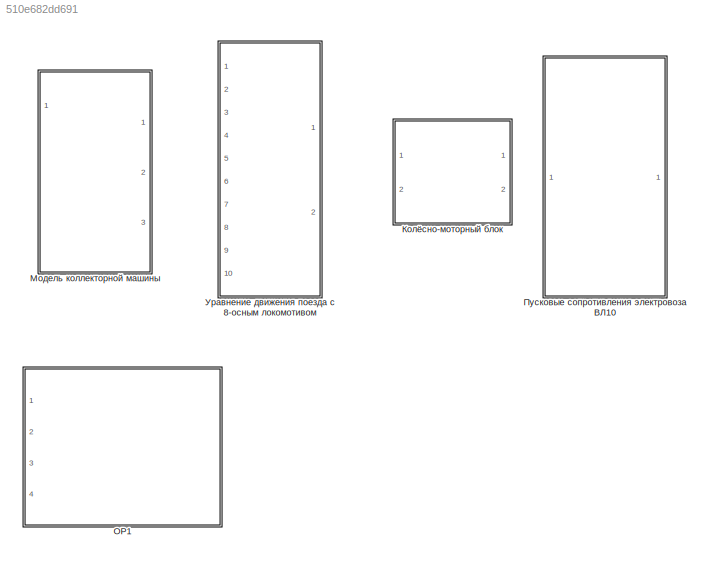
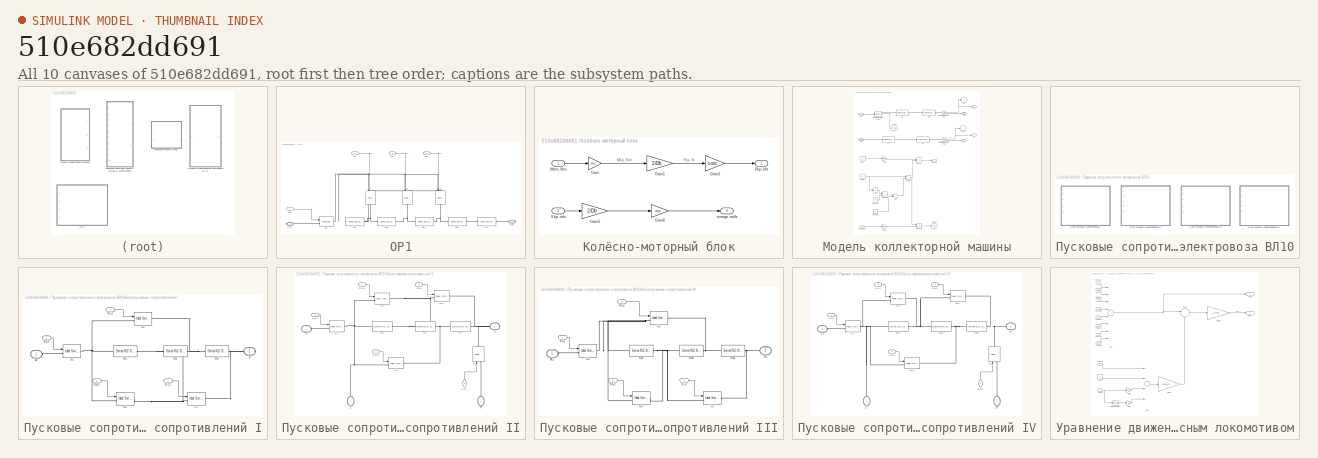
[diagram: thumbnail index - all 10 canvases of the model, root first then tree order]
MODEL slx_510e682dd691
KIND library
CONFIG AbsTol = auto
CONFIG EnableMultiTasking = off
CONFIG FixedStep = auto
CONFIG MaxStep = auto
CONFIG MinStep = auto
CONFIG RelTol = 1e-3
CONFIG SampleTimeConstraint = Unconstrained
CONFIG Solver = VariableStepAuto
CONFIG SolverName = VariableStepAuto
CONFIG StartTime = 0.0
CONFIG StopTime = 10.0
BLOCK [SubSystem] OP1
  Ports = [4, 0, 0, 0, 0, 0, 2]
  RequestExecContextInheritance = off
  Variant = off
BLOCK [Reference] OP1/13  REF=powerlib/Power
Electronics/Ideal Switch
  Ports = [1, 0, 0, 0, 0, 1, 1]
  SourceBlock = powerlib/Power\nElectronics/Ideal Switch
  SourceProductBaseCode = PS
  SourceProductName = Simscape Power Systems
  SourceType = Ideal Switch
BLOCK [Reference] OP1/14  REF=powerlib/Power
Electronics/Ideal Switch
  Ports = [1, 0, 0, 0, 0, 1, 1]
  SourceBlock = powerlib/Power\nElectronics/Ideal Switch
  SourceProductBaseCode = PS
  SourceProductName = Simscape Power Systems
  SourceType = Ideal Switch
BLOCK [Reference] OP1/15  REF=powerlib/Power
Electronics/Ideal Switch
  Ports = [1, 0, 0, 0, 0, 1, 1]
  SourceBlock = powerlib/Power\nElectronics/Ideal Switch
  SourceProductBaseCode = PS
  SourceProductName = Simscape Power Systems
  SourceType = Ideal Switch
BLOCK [Reference] OP1/16  REF=powerlib/Power
Electronics/Ideal Switch
  Ports = [1, 0, 0, 0, 0, 1, 1]
  SourceBlock = powerlib/Power\nElectronics/Ideal Switch
  SourceProductBaseCode = PS
  SourceProductName = Simscape Power Systems
  SourceType = Ideal Switch
BLOCK [Inport] OP1/K13
  IconDisplay = Port number
  Port = 2
BLOCK [Inport] OP1/K14
  IconDisplay = Port number
BLOCK [Inport] OP1/K15
  IconDisplay = Port number
  Port = 3
BLOCK [Inport] OP1/K16
  IconDisplay = Port number
  Port = 4
BLOCK [Reference] OP1/L71  REF=powerlib/Elements/Series RLC Branch
  Ports = [0, 0, 0, 0, 0, 1, 1]
  SourceBlock = powerlib/Elements/Series RLC Branch
  SourceProductBaseCode = PS
  SourceProductName = Simscape Power Systems
  SourceType = Series RLC Branch
BLOCK [PMIOPort] OP1/OP1
  Port = 1
  Side = Right
BLOCK [PMIOPort] OP1/OP2
  Port = 2
  Side = Right
BLOCK [Reference] OP1/R10  REF=powerlib/Elements/Series RLC Branch
  Ports = [0, 0, 0, 0, 0, 1, 1]
  SourceBlock = powerlib/Elements/Series RLC Branch
  SourceProductBaseCode = PS
  SourceProductName = Simscape Power Systems
  SourceType = Series RLC Branch
BLOCK [Reference] OP1/R11  REF=powerlib/Elements/Series RLC Branch
  Ports = [0, 0, 0, 0, 0, 1, 1]
  SourceBlock = powerlib/Elements/Series RLC Branch
  SourceProductBaseCode = PS
  SourceProductName = Simscape Power Systems
  SourceType = Series RLC Branch
BLOCK [Reference] OP1/R12  REF=powerlib/Elements/Series RLC Branch
  Ports = [0, 0, 0, 0, 0, 1, 1]
  SourceBlock = powerlib/Elements/Series RLC Branch
  SourceProductBaseCode = PS
  SourceProductName = Simscape Power Systems
  SourceType = Series RLC Branch
BLOCK [Reference] OP1/R9  REF=powerlib/Elements/Series RLC Branch
  Ports = [0, 0, 0, 0, 0, 1, 1]
  SourceBlock = powerlib/Elements/Series RLC Branch
  SourceProductBaseCode = PS
  SourceProductName = Simscape Power Systems
  SourceType = Series RLC Branch
BLOCK [SubSystem] Колёсно-моторный блок
  Ports = [2, 2]
  RequestExecContextInheritance = off
  Variant = off
BLOCK [Outport] Колёсно-моторный блок/Fkp, kN
  IconDisplay = Port number
BLOCK [Gain] Колёсно-моторный блок/Gain
  Gain = mu
  OutDataTypeStr = Inherit: Inherit via internal rule
  ParamDataTypeStr = Inherit: Inherit via internal rule
  SaturateOnIntegerOverflow = off
BLOCK [Gain] Колёсно-моторный блок/Gain1
  Gain = 2/Db
  OutDataTypeStr = Inherit: Inherit via internal rule
  ParamDataTypeStr = Inherit: Inherit via internal rule
  SaturateOnIntegerOverflow = off
BLOCK [Gain] Колёсно-моторный блок/Gain2
  Gain = 0.001
  OutDataTypeStr = Inherit: Inherit via internal rule
  ParamDataTypeStr = Inherit: Inherit via internal rule
  SaturateOnIntegerOverflow = off
BLOCK [Gain] Колёсно-моторный блок/Gain5
  Gain = 2/Db
  OutDataTypeStr = Inherit: Inherit via internal rule
  ParamDataTypeStr = Inherit: Inherit via internal rule
  SaturateOnIntegerOverflow = off
BLOCK [Gain] Колёсно-моторный блок/Gain6
  Gain = mu
  OutDataTypeStr = Inherit: Inherit via internal rule
  ParamDataTypeStr = Inherit: Inherit via internal rule
  SaturateOnIntegerOverflow = off
BLOCK [Inport] Колёсно-моторный блок/Mem, Nm
  IconDisplay = Port number
BLOCK [Inport] Колёсно-моторный блок/Vkp, m//s
  IconDisplay = Port number
  Port = 2
BLOCK [Outport] Колёсно-моторный блок/omega, rad//s
  IconDisplay = Port number
  Port = 2
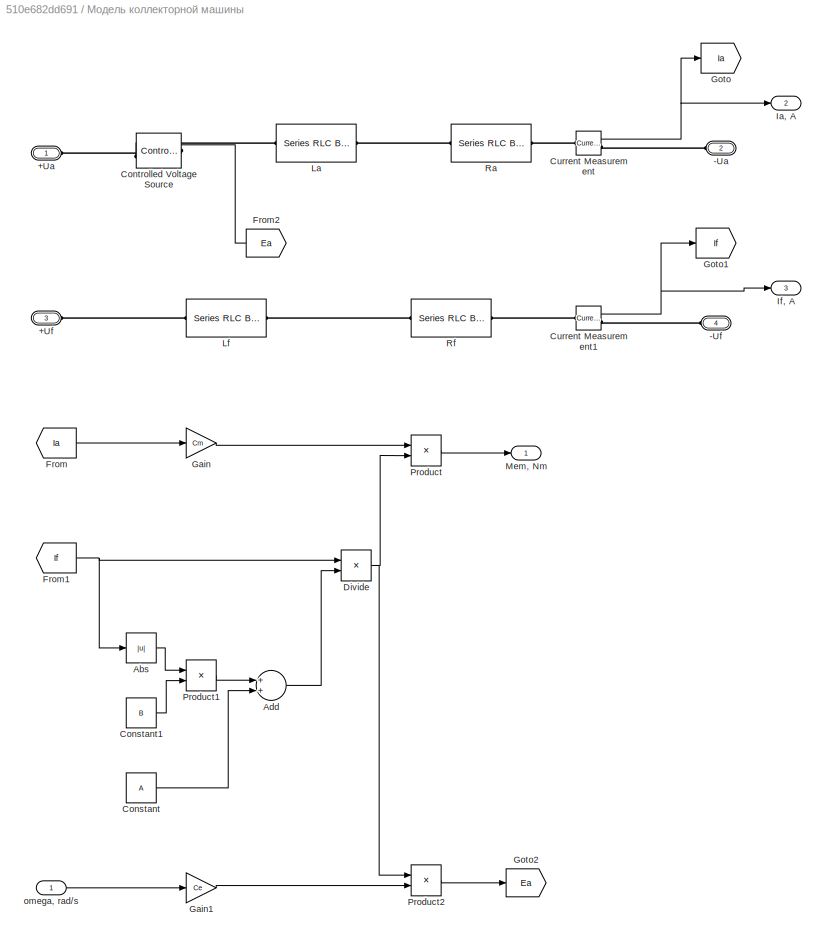
BLOCK [SubSystem] Модель коллекторной машины
  Ports = [1, 3, 0, 0, 0, 4]
  RequestExecContextInheritance = off
  Variant = off
BLOCK [PMIOPort] Модель коллекторной машины/+Ua
  Port = 1
  Side = Left
BLOCK [PMIOPort] Модель коллекторной машины/+Uf
  Port = 3
  Side = Left
BLOCK [PMIOPort] Модель коллекторной машины/-Ua
  Port = 2
  Side = Left
BLOCK [PMIOPort] Модель коллекторной машины/-Uf
  Port = 4
  Side = Left
BLOCK [Abs] Модель коллекторной машины/Abs
  SaturateOnIntegerOverflow = off
BLOCK [Sum] Модель коллекторной машины/Add
  InputSameDT = off
  OutDataTypeStr = Inherit: Inherit via internal rule
  Ports = [2, 1]
  SaturateOnIntegerOverflow = off
BLOCK [Constant] Модель коллекторной машины/Constant
  Value = A
BLOCK [Constant] Модель коллекторной машины/Constant1
  Value = B
BLOCK [Reference] Модель коллекторной машины/Controlled Voltage Source  REF=powerlib/Electrical
Sources/Controlled Voltage Source
  Ports = [1, 0, 0, 0, 0, 1, 1]
  SourceBlock = powerlib/Electrical\nSources/Controlled Voltage Source
  SourceProductBaseCode = PS
  SourceProductName = Simscape Power Systems
  SourceType = Controlled Voltage Source
BLOCK [Reference] Модель коллекторной машины/Current Measurement  REF=powerlib/Measurements/Current Measurement
  Ports = [0, 1, 0, 0, 0, 1, 1]
  SourceBlock = powerlib/Measurements/Current Measurement
  SourceProductBaseCode = PS
  SourceProductName = Simscape Power Systems
  SourceType = Current Measurement
  UserDataPersistent = on
BLOCK [Reference] Модель коллекторной машины/Current Measurement1  REF=powerlib/Measurements/Current Measurement
  Ports = [0, 1, 0, 0, 0, 1, 1]
  SourceBlock = powerlib/Measurements/Current Measurement
  SourceProductBaseCode = PS
  SourceProductName = Simscape Power Systems
  SourceType = Current Measurement
  UserDataPersistent = on
BLOCK [Product] Модель коллекторной машины/Divide
  InputSameDT = off
  Inputs = */
  OutDataTypeStr = Inherit: Inherit via internal rule
  Ports = [2, 1]
  RndMeth = Floor
  SaturateOnIntegerOverflow = off
BLOCK [From] Модель коллекторной машины/From
  GotoTag = Ia
BLOCK [From] Модель коллекторной машины/From1
  GotoTag = If
BLOCK [From] Модель коллекторной машины/From2
  GotoTag = Ea
BLOCK [Gain] Модель коллекторной машины/Gain
  Gain = Cm
  OutDataTypeStr = Inherit: Inherit via internal rule
  ParamDataTypeStr = Inherit: Inherit via internal rule
  SaturateOnIntegerOverflow = off
BLOCK [Gain] Модель коллекторной машины/Gain1
  Gain = Ce
  OutDataTypeStr = Inherit: Inherit via internal rule
  ParamDataTypeStr = Inherit: Inherit via internal rule
  SaturateOnIntegerOverflow = off
BLOCK [Goto] Модель коллекторной машины/Goto
  GotoTag = Ia
BLOCK [Goto] Модель коллекторной машины/Goto1
  GotoTag = If
BLOCK [Goto] Модель коллекторной машины/Goto2
  GotoTag = Ea
BLOCK [Outport] Модель коллекторной машины/Ia, A
  IconDisplay = Port number
  Port = 2
BLOCK [Outport] Модель коллекторной машины/If, A
  IconDisplay = Port number
  Port = 3
BLOCK [Reference] Модель коллекторной машины/La  REF=powerlib/Elements/Series RLC Branch
  Ports = [0, 0, 0, 0, 0, 1, 1]
  SourceBlock = powerlib/Elements/Series RLC Branch
  SourceProductBaseCode = PS
  SourceProductName = Simscape Power Systems
  SourceType = Series RLC Branch
BLOCK [Reference] Модель коллекторной машины/Lf  REF=powerlib/Elements/Series RLC Branch
  Ports = [0, 0, 0, 0, 0, 1, 1]
  SourceBlock = powerlib/Elements/Series RLC Branch
  SourceProductBaseCode = PS
  SourceProductName = Simscape Power Systems
  SourceType = Series RLC Branch
BLOCK [Outport] Модель коллекторной машины/Mem, Nm
  IconDisplay = Port number
BLOCK [Product] Модель коллекторной машины/Product
  InputSameDT = off
  OutDataTypeStr = Inherit: Inherit via internal rule
  Ports = [2, 1]
  RndMeth = Floor
  SaturateOnIntegerOverflow = off
BLOCK [Product] Модель коллекторной машины/Product1
  InputSameDT = off
  OutDataTypeStr = Inherit: Inherit via internal rule
  Ports = [2, 1]
  RndMeth = Floor
  SaturateOnIntegerOverflow = off
BLOCK [Product] Модель коллекторной машины/Product2
  InputSameDT = off
  OutDataTypeStr = Inherit: Inherit via internal rule
  Ports = [2, 1]
  RndMeth = Floor
  SaturateOnIntegerOverflow = off
BLOCK [Reference] Модель коллекторной машины/Ra  REF=powerlib/Elements/Series RLC Branch
  Ports = [0, 0, 0, 0, 0, 1, 1]
  SourceBlock = powerlib/Elements/Series RLC Branch
  SourceProductBaseCode = PS
  SourceProductName = Simscape Power Systems
  SourceType = Series RLC Branch
BLOCK [Reference] Модель коллекторной машины/Rf  REF=powerlib/Elements/Series RLC Branch
  Ports = [0, 0, 0, 0, 0, 1, 1]
  SourceBlock = powerlib/Elements/Series RLC Branch
  SourceProductBaseCode = PS
  SourceProductName = Simscape Power Systems
  SourceType = Series RLC Branch
BLOCK [Inport] Модель коллекторной машины/omega, rad//s
  IconDisplay = Port number
BLOCK [SubSystem] Пусковые сопротивления электровоза ВЛ10
  Ports = []
  RequestExecContextInheritance = off
  Variant = off
BLOCK [SubSystem] Пусковые сопротивления электровоза ВЛ10/Блок пусковых сопротивлений I
  Ports = [4, 0, 0, 0, 0, 1, 1]
  RequestExecContextInheritance = off
  Variant = off
BLOCK [Reference] Пусковые сопротивления электровоза ВЛ10/Блок пусковых сопротивлений I/3-1  REF=powerlib/Power
Electronics/Ideal Switch
  Ports = [1, 0, 0, 0, 0, 1, 1]
  SourceBlock = powerlib/Power\nElectronics/Ideal Switch
  SourceProductBaseCode = PS
  SourceProductName = Simscape Power Systems
  SourceType = Ideal Switch
BLOCK [Reference] Пусковые сопротивления электровоза ВЛ10/Блок пусковых сопротивлений I/5-1  REF=powerlib/Power
Electronics/Ideal Switch
  Ports = [1, 0, 0, 0, 0, 1, 1]
  SourceBlock = powerlib/Power\nElectronics/Ideal Switch
  SourceProductBaseCode = PS
  SourceProductName = Simscape Power Systems
  SourceType = Ideal Switch
BLOCK [Reference] Пусковые сопротивления электровоза ВЛ10/Блок пусковых сопротивлений I/6-1  REF=powerlib/Power
Electronics/Ideal Switch
  Ports = [1, 0, 0, 0, 0, 1, 1]
  SourceBlock = powerlib/Power\nElectronics/Ideal Switch
  SourceProductBaseCode = PS
  SourceProductName = Simscape Power Systems
  SourceType = Ideal Switch
BLOCK [Reference] Пусковые сопротивления электровоза ВЛ10/Блок пусковых сопротивлений I/7-1  REF=powerlib/Power
Electronics/Ideal Switch
  Ports = [1, 0, 0, 0, 0, 1, 1]
  SourceBlock = powerlib/Power\nElectronics/Ideal Switch
  SourceProductBaseCode = PS
  SourceProductName = Simscape Power Systems
  SourceType = Ideal Switch
BLOCK [PMIOPort] Пусковые сопротивления электровоза ВЛ10/Блок пусковых сопротивлений I/A
  Port = 1
  Side = Left
  Tag = PMCPort
BLOCK [PMIOPort] Пусковые сопротивления электровоза ВЛ10/Блок пусковых сопротивлений I/B
  Port = 2
  Side = Right
  Tag = PMCPort
BLOCK [Inport] Пусковые сопротивления электровоза ВЛ10/Блок пусковых сопротивлений I/K3-1
  IconDisplay = Port number
BLOCK [Inport] Пусковые сопротивления электровоза ВЛ10/Блок пусковых сопротивлений I/K5-1
  IconDisplay = Port number
  Port = 2
BLOCK [Inport] Пусковые сопротивления электровоза ВЛ10/Блок пусковых сопротивлений I/K6-1
  IconDisplay = Port number
  Port = 3
BLOCK [Inport] Пусковые сопротивления электровоза ВЛ10/Блок пусковых сопротивлений I/K7-1
  IconDisplay = Port number
  Port = 4
BLOCK [Reference] Пусковые сопротивления электровоза ВЛ10/Блок пусковых сопротивлений I/R1  REF=powerlib/Elements/Series RLC Branch
  Ports = [0, 0, 0, 0, 0, 1, 1]
  SourceBlock = powerlib/Elements/Series RLC Branch
  SourceProductBaseCode = PS
  SourceProductName = Simscape Power Systems
  SourceType = Series RLC Branch
BLOCK [Reference] Пусковые сопротивления электровоза ВЛ10/Блок пусковых сопротивлений I/R2  REF=powerlib/Elements/Series RLC Branch
  Ports = [0, 0, 0, 0, 0, 1, 1]
  SourceBlock = powerlib/Elements/Series RLC Branch
  SourceProductBaseCode = PS
  SourceProductName = Simscape Power Systems
  SourceType = Series RLC Branch
BLOCK [Reference] Пусковые сопротивления электровоза ВЛ10/Блок пусковых сопротивлений I/R3  REF=powerlib/Elements/Series RLC Branch
  Ports = [0, 0, 0, 0, 0, 1, 1]
  SourceBlock = powerlib/Elements/Series RLC Branch
  SourceProductBaseCode = PS
  SourceProductName = Simscape Power Systems
  SourceType = Series RLC Branch
BLOCK [SubSystem] Пусковые сопротивления электровоза ВЛ10/Блок пусковых сопротивлений II
  Ports = [5, 0, 0, 0, 0, 2, 2]
  RequestExecContextInheritance = off
  Variant = off
BLOCK [Reference] Пусковые сопротивления электровоза ВЛ10/Блок пусковых сопротивлений II/1-1  REF=powerlib/Power
Electronics/Ideal Switch
  Ports = [1, 0, 0, 0, 0, 1, 1]
  SourceBlock = powerlib/Power\nElectronics/Ideal Switch
  SourceProductBaseCode = PS
  SourceProductName = Simscape Power Systems
  SourceType = Ideal Switch
BLOCK [Reference] Пусковые сопротивления электровоза ВЛ10/Блок пусковых сопротивлений II/10-1  REF=powerlib/Power
Electronics/Ideal Switch
  Ports = [1, 0, 0, 0, 0, 1, 1]
  SourceBlock = powerlib/Power\nElectronics/Ideal Switch
  SourceProductBaseCode = PS
  SourceProductName = Simscape Power Systems
  SourceType = Ideal Switch
BLOCK [Reference] Пусковые сопротивления электровоза ВЛ10/Блок пусковых сопротивлений II/11-1  REF=powerlib/Power
Electronics/Ideal Switch
  Ports = [1, 0, 0, 0, 0, 1, 1]
  SourceBlock = powerlib/Power\nElectronics/Ideal Switch
  SourceProductBaseCode = PS
  SourceProductName = Simscape Power Systems
  SourceType = Ideal Switch
BLOCK [Reference] Пусковые сопротивления электровоза ВЛ10/Блок пусковых сопротивлений II/12-1  REF=powerlib/Power
Electronics/Ideal Switch
  Ports = [1, 0, 0, 0, 0, 1, 1]
  SourceBlock = powerlib/Power\nElectronics/Ideal Switch
  SourceProductBaseCode = PS
  SourceProductName = Simscape Power Systems
  SourceType = Ideal Switch
BLOCK [Reference] Пусковые сопротивления электровоза ВЛ10/Блок пусковых сопротивлений II/8-1  REF=powerlib/Power
Electronics/Ideal Switch
  Ports = [1, 0, 0, 0, 0, 1, 1]
  SourceBlock = powerlib/Power\nElectronics/Ideal Switch
  SourceProductBaseCode = PS
  SourceProductName = Simscape Power Systems
  SourceType = Ideal Switch
BLOCK [PMIOPort] Пусковые сопротивления электровоза ВЛ10/Блок пусковых сопротивлений II/C
  Port = 1
  Side = Left
  Tag = PMCPort
BLOCK [PMIOPort] Пусковые сопротивления электровоза ВЛ10/Блок пусковых сопротивлений II/D
  Port = 2
  Side = Right
  Tag = PMCPort
BLOCK [PMIOPort] Пусковые сопротивления электровоза ВЛ10/Блок пусковых сопротивлений II/E
  Port = 3
  Side = Left
  Tag = PMCPort
BLOCK [PMIOPort] Пусковые сопротивления электровоза ВЛ10/Блок пусковых сопротивлений II/F
  Port = 4
  Side = Right
  Tag = PMCPort
BLOCK [Inport] Пусковые сопротивления электровоза ВЛ10/Блок пусковых сопротивлений II/K1-1
  IconDisplay = Port number
BLOCK [Inport] Пусковые сопротивления электровоза ВЛ10/Блок пусковых сопротивлений II/K10-1
  IconDisplay = Port number
  Port = 3
BLOCK [Inport] Пусковые сопротивления электровоза ВЛ10/Блок пусковых сопротивлений II/K11-1
  IconDisplay = Port number
  Port = 4
BLOCK [Inport] Пусковые сопротивления электровоза ВЛ10/Блок пусковых сопротивлений II/K12-1
  IconDisplay = Port number
  Port = 5
BLOCK [Inport] Пусковые сопротивления электровоза ВЛ10/Блок пусковых сопротивлений II/K8-1
  IconDisplay = Port number
  Port = 2
BLOCK [Reference] Пусковые сопротивления электровоза ВЛ10/Блок пусковых сопротивлений II/R5  REF=powerlib/Elements/Series RLC Branch
  Ports = [0, 0, 0, 0, 0, 1, 1]
  SourceBlock = powerlib/Elements/Series RLC Branch
  SourceProductBaseCode = PS
  SourceProductName = Simscape Power Systems
  SourceType = Series RLC Branch
BLOCK [Reference] Пусковые сопротивления электровоза ВЛ10/Блок пусковых сопротивлений II/R6  REF=powerlib/Elements/Series RLC Branch
  Ports = [0, 0, 0, 0, 0, 1, 1]
  SourceBlock = powerlib/Elements/Series RLC Branch
  SourceProductBaseCode = PS
  SourceProductName = Simscape Power Systems
  SourceType = Series RLC Branch
BLOCK [Reference] Пусковые сопротивления электровоза ВЛ10/Блок пусковых сопротивлений II/R7  REF=powerlib/Elements/Series RLC Branch
  Ports = [0, 0, 0, 0, 0, 1, 1]
  SourceBlock = powerlib/Elements/Series RLC Branch
  SourceProductBaseCode = PS
  SourceProductName = Simscape Power Systems
  SourceType = Series RLC Branch
BLOCK [SubSystem] Пусковые сопротивления электровоза ВЛ10/Блок пусковых сопротивлений III
  Ports = [4, 0, 0, 0, 0, 1, 1]
  RequestExecContextInheritance = off
  Variant = off
BLOCK [Reference] Пусковые сопротивления электровоза ВЛ10/Блок пусковых сопротивлений III/3-2  REF=powerlib/Power
Electronics/Ideal Switch
  Ports = [1, 0, 0, 0, 0, 1, 1]
  SourceBlock = powerlib/Power\nElectronics/Ideal Switch
  SourceProductBaseCode = PS
  SourceProductName = Simscape Power Systems
  SourceType = Ideal Switch
BLOCK [Reference] Пусковые сопротивления электровоза ВЛ10/Блок пусковых сопротивлений III/5-2  REF=powerlib/Power
Electronics/Ideal Switch
  Ports = [1, 0, 0, 0, 0, 1, 1]
  SourceBlock = powerlib/Power\nElectronics/Ideal Switch
  SourceProductBaseCode = PS
  SourceProductName = Simscape Power Systems
  SourceType = Ideal Switch
BLOCK [Reference] Пусковые сопротивления электровоза ВЛ10/Блок пусковых сопротивлений III/6-2  REF=powerlib/Power
Electronics/Ideal Switch
  Ports = [1, 0, 0, 0, 0, 1, 1]
  SourceBlock = powerlib/Power\nElectronics/Ideal Switch
  SourceProductBaseCode = PS
  SourceProductName = Simscape Power Systems
  SourceType = Ideal Switch
BLOCK [Reference] Пусковые сопротивления электровоза ВЛ10/Блок пусковых сопротивлений III/7-2  REF=powerlib/Power
Electronics/Ideal Switch
  Ports = [1, 0, 0, 0, 0, 1, 1]
  SourceBlock = powerlib/Power\nElectronics/Ideal Switch
  SourceProductBaseCode = PS
  SourceProductName = Simscape Power Systems
  SourceType = Ideal Switch
BLOCK [PMIOPort] Пусковые сопротивления электровоза ВЛ10/Блок пусковых сопротивлений III/A2
  Port = 1
  Side = Left
  Tag = PMCPort
BLOCK [PMIOPort] Пусковые сопротивления электровоза ВЛ10/Блок пусковых сопротивлений III/B2
  Port = 2
  Side = Right
  Tag = PMCPort
BLOCK [Inport] Пусковые сопротивления электровоза ВЛ10/Блок пусковых сопротивлений III/K3-2
  IconDisplay = Port number
BLOCK [Inport] Пусковые сопротивления электровоза ВЛ10/Блок пусковых сопротивлений III/K5-2
  IconDisplay = Port number
  Port = 2
BLOCK [Inport] Пусковые сопротивления электровоза ВЛ10/Блок пусковых сопротивлений III/K6-2
  IconDisplay = Port number
  Port = 3
BLOCK [Inport] Пусковые сопротивления электровоза ВЛ10/Блок пусковых сопротивлений III/K7-2
  IconDisplay = Port number
  Port = 4
BLOCK [Reference] Пусковые сопротивления электровоза ВЛ10/Блок пусковых сопротивлений III/R23  REF=powerlib/Elements/Series RLC Branch
  Ports = [0, 0, 0, 0, 0, 1, 1]
  SourceBlock = powerlib/Elements/Series RLC Branch
  SourceProductBaseCode = PS
  SourceProductName = Simscape Power Systems
  SourceType = Series RLC Branch
BLOCK [Reference] Пусковые сопротивления электровоза ВЛ10/Блок пусковых сопротивлений III/R24  REF=powerlib/Elements/Series RLC Branch
  Ports = [0, 0, 0, 0, 0, 1, 1]
  SourceBlock = powerlib/Elements/Series RLC Branch
  SourceProductBaseCode = PS
  SourceProductName = Simscape Power Systems
  SourceType = Series RLC Branch
BLOCK [Reference] Пусковые сопротивления электровоза ВЛ10/Блок пусковых сопротивлений III/R25  REF=powerlib/Elements/Series RLC Branch
  Ports = [0, 0, 0, 0, 0, 1, 1]
  SourceBlock = powerlib/Elements/Series RLC Branch
  SourceProductBaseCode = PS
  SourceProductName = Simscape Power Systems
  SourceType = Series RLC Branch
BLOCK [SubSystem] Пусковые сопротивления электровоза ВЛ10/Блок пусковых сопротивлений IV
  Ports = [5, 0, 0, 0, 0, 2, 2]
  RequestExecContextInheritance = off
  Variant = off
BLOCK [Reference] Пусковые сопротивления электровоза ВЛ10/Блок пусковых сопротивлений IV/1-2  REF=powerlib/Power
Electronics/Ideal Switch
  Ports = [1, 0, 0, 0, 0, 1, 1]
  SourceBlock = powerlib/Power\nElectronics/Ideal Switch
  SourceProductBaseCode = PS
  SourceProductName = Simscape Power Systems
  SourceType = Ideal Switch
BLOCK [Reference] Пусковые сопротивления электровоза ВЛ10/Блок пусковых сопротивлений IV/10-2  REF=powerlib/Power
Electronics/Ideal Switch
  Ports = [1, 0, 0, 0, 0, 1, 1]
  SourceBlock = powerlib/Power\nElectronics/Ideal Switch
  SourceProductBaseCode = PS
  SourceProductName = Simscape Power Systems
  SourceType = Ideal Switch
BLOCK [Reference] Пусковые сопротивления электровоза ВЛ10/Блок пусковых сопротивлений IV/11-2  REF=powerlib/Power
Electronics/Ideal Switch
  Ports = [1, 0, 0, 0, 0, 1, 1]
  SourceBlock = powerlib/Power\nElectronics/Ideal Switch
  SourceProductBaseCode = PS
  SourceProductName = Simscape Power Systems
  SourceType = Ideal Switch
BLOCK [Reference] Пусковые сопротивления электровоза ВЛ10/Блок пусковых сопротивлений IV/12-2  REF=powerlib/Power
Electronics/Ideal Switch
  Ports = [1, 0, 0, 0, 0, 1, 1]
  SourceBlock = powerlib/Power\nElectronics/Ideal Switch
  SourceProductBaseCode = PS
  SourceProductName = Simscape Power Systems
  SourceType = Ideal Switch
BLOCK [Reference] Пусковые сопротивления электровоза ВЛ10/Блок пусковых сопротивлений IV/8-2  REF=powerlib/Power
Electronics/Ideal Switch
  Ports = [1, 0, 0, 0, 0, 1, 1]
  SourceBlock = powerlib/Power\nElectronics/Ideal Switch
  SourceProductBaseCode = PS
  SourceProductName = Simscape Power Systems
  SourceType = Ideal Switch
BLOCK [PMIOPort] Пусковые сопротивления электровоза ВЛ10/Блок пусковых сопротивлений IV/C2
  Port = 1
  Side = Left
  Tag = PMCPort
BLOCK [PMIOPort] Пусковые сопротивления электровоза ВЛ10/Блок пусковых сопротивлений IV/D2
  Port = 2
  Side = Right
  Tag = PMCPort
BLOCK [PMIOPort] Пусковые сопротивления электровоза ВЛ10/Блок пусковых сопротивлений IV/E2
  Port = 3
  Side = Left
  Tag = PMCPort
BLOCK [PMIOPort] Пусковые сопротивления электровоза ВЛ10/Блок пусковых сопротивлений IV/F2
  Port = 4
  Side = Right
  Tag = PMCPort
BLOCK [Inport] Пусковые сопротивления электровоза ВЛ10/Блок пусковых сопротивлений IV/K1-2
  IconDisplay = Port number
BLOCK [Inport] Пусковые сопротивления электровоза ВЛ10/Блок пусковых сопротивлений IV/K10-2
  IconDisplay = Port number
  Port = 3
BLOCK [Inport] Пусковые сопротивления электровоза ВЛ10/Блок пусковых сопротивлений IV/K11-2
  IconDisplay = Port number
  Port = 4
BLOCK [Inport] Пусковые сопротивления электровоза ВЛ10/Блок пусковых сопротивлений IV/K12-2
  IconDisplay = Port number
  Port = 5
BLOCK [Inport] Пусковые сопротивления электровоза ВЛ10/Блок пусковых сопротивлений IV/K8-2
  IconDisplay = Port number
  Port = 2
BLOCK [Reference] Пусковые сопротивления электровоза ВЛ10/Блок пусковых сопротивлений IV/R27  REF=powerlib/Elements/Series RLC Branch
  Ports = [0, 0, 0, 0, 0, 1, 1]
  SourceBlock = powerlib/Elements/Series RLC Branch
  SourceProductBaseCode = PS
  SourceProductName = Simscape Power Systems
  SourceType = Series RLC Branch
BLOCK [Reference] Пусковые сопротивления электровоза ВЛ10/Блок пусковых сопротивлений IV/R28  REF=powerlib/Elements/Series RLC Branch
  Ports = [0, 0, 0, 0, 0, 1, 1]
  SourceBlock = powerlib/Elements/Series RLC Branch
  SourceProductBaseCode = PS
  SourceProductName = Simscape Power Systems
  SourceType = Series RLC Branch
BLOCK [Reference] Пусковые сопротивления электровоза ВЛ10/Блок пусковых сопротивлений IV/R29  REF=powerlib/Elements/Series RLC Branch
  Ports = [0, 0, 0, 0, 0, 1, 1]
  SourceBlock = powerlib/Elements/Series RLC Branch
  SourceProductBaseCode = PS
  SourceProductName = Simscape Power Systems
  SourceType = Series RLC Branch
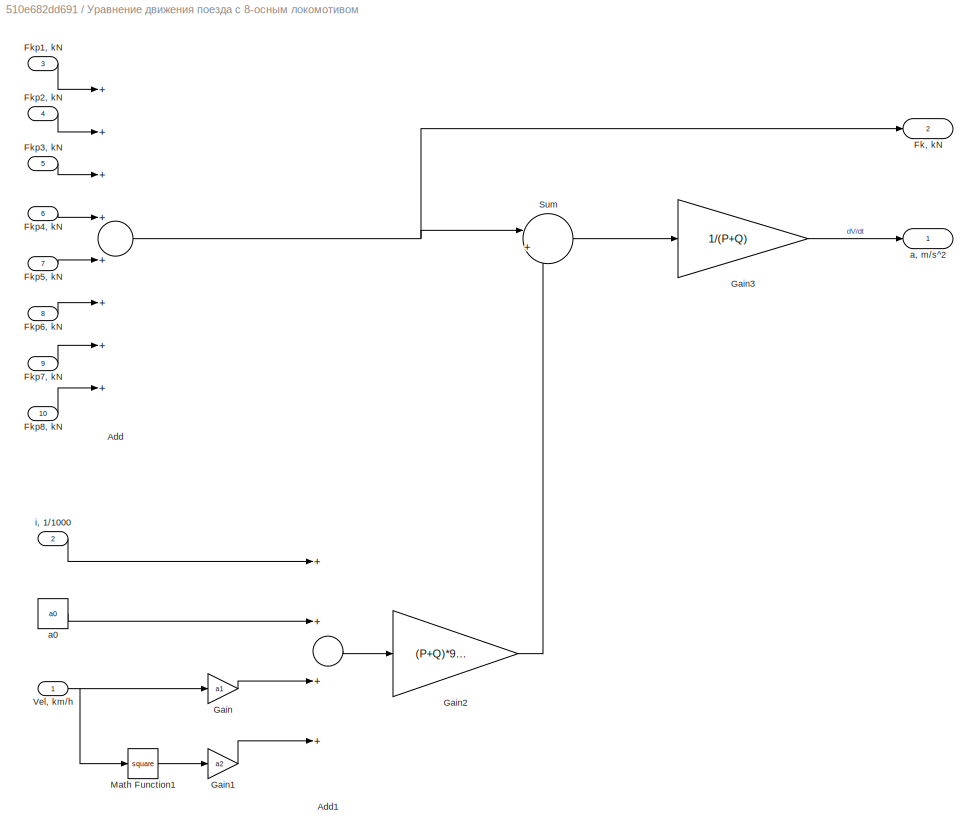
BLOCK [SubSystem] Уравнение движения поезда c 8-осным локомотивом
  Ports = [10, 2]
  RequestExecContextInheritance = off
  Variant = off
BLOCK [Sum] Уравнение движения поезда c 8-осным локомотивом/Add
  InputSameDT = off
  Inputs = ++++++++
  OutDataTypeStr = Inherit: Inherit via internal rule
  Ports = [8, 1]
  SaturateOnIntegerOverflow = off
BLOCK [Sum] Уравнение движения поезда c 8-осным локомотивом/Add1
  InputSameDT = off
  Inputs = ++++
  OutDataTypeStr = Inherit: Inherit via internal rule
  Ports = [4, 1]
  SaturateOnIntegerOverflow = off
BLOCK [Outport] Уравнение движения поезда c 8-осным локомотивом/Fk, kN
  IconDisplay = Port number
  Port = 2
BLOCK [Inport] Уравнение движения поезда c 8-осным локомотивом/Fkp1, kN
  IconDisplay = Port number
  Port = 3
BLOCK [Inport] Уравнение движения поезда c 8-осным локомотивом/Fkp2, kN
  IconDisplay = Port number
  Port = 4
BLOCK [Inport] Уравнение движения поезда c 8-осным локомотивом/Fkp3, kN
  IconDisplay = Port number
  Port = 5
BLOCK [Inport] Уравнение движения поезда c 8-осным локомотивом/Fkp4, kN
  IconDisplay = Port number
  Port = 6
BLOCK [Inport] Уравнение движения поезда c 8-осным локомотивом/Fkp5, kN
  IconDisplay = Port number
  Port = 7
BLOCK [Inport] Уравнение движения поезда c 8-осным локомотивом/Fkp6, kN
  IconDisplay = Port number
  Port = 8
BLOCK [Inport] Уравнение движения поезда c 8-осным локомотивом/Fkp7, kN
  IconDisplay = Port number
  Port = 9
BLOCK [Inport] Уравнение движения поезда c 8-осным локомотивом/Fkp8, kN
  IconDisplay = Port number
  Port = 10
BLOCK [Gain] Уравнение движения поезда c 8-осным локомотивом/Gain
  Gain = a1
  OutDataTypeStr = Inherit: Inherit via internal rule
  ParamDataTypeStr = Inherit: Inherit via internal rule
  SaturateOnIntegerOverflow = off
BLOCK [Gain] Уравнение движения поезда c 8-осным локомотивом/Gain1
  Gain = a2
  OutDataTypeStr = Inherit: Inherit via internal rule
  ParamDataTypeStr = Inherit: Inherit via internal rule
  SaturateOnIntegerOverflow = off
BLOCK [Gain] Уравнение движения поезда c 8-осным локомотивом/Gain2
  Gain = (P+Q)*9.81*(1/1000)
  OutDataTypeStr = Inherit: Inherit via internal rule
  ParamDataTypeStr = Inherit: Inherit via internal rule
  SaturateOnIntegerOverflow = off
BLOCK [Gain] Уравнение движения поезда c 8-осным локомотивом/Gain3
  Gain = 1/(P+Q)
  OutDataTypeStr = Inherit: Inherit via internal rule
  ParamDataTypeStr = Inherit: Inherit via internal rule
  SaturateOnIntegerOverflow = off
BLOCK [Math] Уравнение движения поезда c 8-осным локомотивом/Math Function1
  Operator = square
  Ports = [1, 1]
BLOCK [Sum] Уравнение движения поезда c 8-осным локомотивом/Sum
  IconShape = round
  InputSameDT = off
  Inputs = |+-
  OutDataTypeStr = Inherit: Inherit via internal rule
  Ports = [2, 1]
  SaturateOnIntegerOverflow = off
BLOCK [Inport] Уравнение движения поезда c 8-осным локомотивом/Vel, km//h
  IconDisplay = Port number
BLOCK [Outport] Уравнение движения поезда c 8-осным локомотивом/a, m//s^2
  IconDisplay = Port number
BLOCK [Constant] Уравнение движения поезда c 8-осным локомотивом/a0
  Value = a0
BLOCK [Inport] Уравнение движения поезда c 8-осным локомотивом/i, 1//1000
  IconDisplay = Port number
  Port = 2
LINE OP1/K13:1 -> OP1/13:1
LINE OP1/K14:1 -> OP1/14:1
LINE OP1/K15:1 -> OP1/15:1
LINE OP1/K16:1 -> OP1/16:1
LINE Колёсно-моторный блок/Gain1:1 -> Колёсно-моторный блок/Gain2:1
LINE Колёсно-моторный блок/Gain2:1 -> Колёсно-моторный блок/Fkp, kN:1
LINE Колёсно-моторный блок/Gain5:1 -> Колёсно-моторный блок/Gain6:1
LINE Колёсно-моторный блок/Gain6:1 -> Колёсно-моторный блок/omega, rad//s:1
LINE Колёсно-моторный блок/Gain:1 -> Колёсно-моторный блок/Gain1:1
LINE Колёсно-моторный блок/Mem, Nm:1 -> Колёсно-моторный блок/Gain:1
LINE Колёсно-моторный блок/Vkp, m//s:1 -> Колёсно-моторный блок/Gain5:1
LINE Модель коллекторной машины/Abs:1 -> Модель коллекторной машины/Product1:1
LINE Модель коллекторной машины/Add:1 -> Модель коллекторной машины/Divide:2
LINE Модель коллекторной машины/Constant1:1 -> Модель коллекторной машины/Product1:2
LINE Модель коллекторной машины/Constant:1 -> Модель коллекторной машины/Add:2
NET Модель коллекторной машины/Current Measurement1:1 -> Модель коллекторной машины/Goto1:1, Модель коллекторной машины/If, A:1
NET Модель коллекторной машины/Current Measurement:1 -> Модель коллекторной машины/Goto:1, Модель коллекторной машины/Ia, A:1
NET Модель коллекторной машины/Divide:1 -> Модель коллекторной машины/Product2:1, Модель коллекторной машины/Product:2
NET Модель коллекторной машины/From1:1 -> Модель коллекторной машины/Abs:1, Модель коллекторной машины/Divide:1
LINE Модель коллекторной машины/From2:1 -> Модель коллекторной машины/Controlled Voltage Source:1
LINE Модель коллекторной машины/From:1 -> Модель коллекторной машины/Gain:1
LINE Модель коллекторной машины/Gain1:1 -> Модель коллекторной машины/Product2:2
LINE Модель коллекторной машины/Gain:1 -> Модель коллекторной машины/Product:1
LINE Модель коллекторной машины/Product1:1 -> Модель коллекторной машины/Add:1
LINE Модель коллекторной машины/Product2:1 -> Модель коллекторной машины/Goto2:1
LINE Модель коллекторной машины/Product:1 -> Модель коллекторной машины/Mem, Nm:1
LINE Модель коллекторной машины/omega, rad//s:1 -> Модель коллекторной машины/Gain1:1
LINE Пусковые сопротивления электровоза ВЛ10/Блок пусковых сопротивлений I/K3-1:1 -> Пусковые сопротивления электровоза ВЛ10/Блок пусковых сопротивлений I/3-1:1
LINE Пусковые сопротивления электровоза ВЛ10/Блок пусковых сопротивлений I/K5-1:1 -> Пусковые сопротивления электровоза ВЛ10/Блок пусковых сопротивлений I/5-1:1
LINE Пусковые сопротивления электровоза ВЛ10/Блок пусковых сопротивлений I/K6-1:1 -> Пусковые сопротивления электровоза ВЛ10/Блок пусковых сопротивлений I/6-1:1
LINE Пусковые сопротивления электровоза ВЛ10/Блок пусковых сопротивлений I/K7-1:1 -> Пусковые сопротивления электровоза ВЛ10/Блок пусковых сопротивлений I/7-1:1
LINE Пусковые сопротивления электровоза ВЛ10/Блок пусковых сопротивлений II/K1-1:1 -> Пусковые сопротивления электровоза ВЛ10/Блок пусковых сопротивлений II/1-1:1
LINE Пусковые сопротивления электровоза ВЛ10/Блок пусковых сопротивлений II/K10-1:1 -> Пусковые сопротивления электровоза ВЛ10/Блок пусковых сопротивлений II/10-1:1
LINE Пусковые сопротивления электровоза ВЛ10/Блок пусковых сопротивлений II/K11-1:1 -> Пусковые сопротивления электровоза ВЛ10/Блок пусковых сопротивлений II/11-1:1
LINE Пусковые сопротивления электровоза ВЛ10/Блок пусковых сопротивлений II/K12-1:1 -> Пусковые сопротивления электровоза ВЛ10/Блок пусковых сопротивлений II/12-1:1
LINE Пусковые сопротивления электровоза ВЛ10/Блок пусковых сопротивлений II/K8-1:1 -> Пусковые сопротивления электровоза ВЛ10/Блок пусковых сопротивлений II/8-1:1
LINE Пусковые сопротивления электровоза ВЛ10/Блок пусковых сопротивлений III/K3-2:1 -> Пусковые сопротивления электровоза ВЛ10/Блок пусковых сопротивлений III/3-2:1
LINE Пусковые сопротивления электровоза ВЛ10/Блок пусковых сопротивлений III/K5-2:1 -> Пусковые сопротивления электровоза ВЛ10/Блок пусковых сопротивлений III/5-2:1
LINE Пусковые сопротивления электровоза ВЛ10/Блок пусковых сопротивлений III/K6-2:1 -> Пусковые сопротивления электровоза ВЛ10/Блок пусковых сопротивлений III/6-2:1
LINE Пусковые сопротивления электровоза ВЛ10/Блок пусковых сопротивлений III/K7-2:1 -> Пусковые сопротивления электровоза ВЛ10/Блок пусковых сопротивлений III/7-2:1
LINE Пусковые сопротивления электровоза ВЛ10/Блок пусковых сопротивлений IV/K1-2:1 -> Пусковые сопротивления электровоза ВЛ10/Блок пусковых сопротивлений IV/1-2:1
LINE Пусковые сопротивления электровоза ВЛ10/Блок пусковых сопротивлений IV/K10-2:1 -> Пусковые сопротивления электровоза ВЛ10/Блок пусковых сопротивлений IV/10-2:1
LINE Пусковые сопротивления электровоза ВЛ10/Блок пусковых сопротивлений IV/K11-2:1 -> Пусковые сопротивления электровоза ВЛ10/Блок пусковых сопротивлений IV/11-2:1
LINE Пусковые сопротивления электровоза ВЛ10/Блок пусковых сопротивлений IV/K12-2:1 -> Пусковые сопротивления электровоза ВЛ10/Блок пусковых сопротивлений IV/12-2:1
LINE Пусковые сопротивления электровоза ВЛ10/Блок пусковых сопротивлений IV/K8-2:1 -> Пусковые сопротивления электровоза ВЛ10/Блок пусковых сопротивлений IV/8-2:1
LINE Уравнение движения поезда c 8-осным локомотивом/Add1:1 -> Уравнение движения поезда c 8-осным локомотивом/Gain2:1
NET Уравнение движения поезда c 8-осным локомотивом/Add:1 -> Уравнение движения поезда c 8-осным локомотивом/Fk, kN:1, Уравнение движения поезда c 8-осным локомотивом/Sum:1
LINE Уравнение движения поезда c 8-осным локомотивом/Fkp1, kN:1 -> Уравнение движения поезда c 8-осным локомотивом/Add:1
LINE Уравнение движения поезда c 8-осным локомотивом/Fkp2, kN:1 -> Уравнение движения поезда c 8-осным локомотивом/Add:2
LINE Уравнение движения поезда c 8-осным локомотивом/Fkp3, kN:1 -> Уравнение движения поезда c 8-осным локомотивом/Add:3
LINE Уравнение движения поезда c 8-осным локомотивом/Fkp4, kN:1 -> Уравнение движения поезда c 8-осным локомотивом/Add:4
LINE Уравнение движения поезда c 8-осным локомотивом/Fkp5, kN:1 -> Уравнение движения поезда c 8-осным локомотивом/Add:5
LINE Уравнение движения поезда c 8-осным локомотивом/Fkp6, kN:1 -> Уравнение движения поезда c 8-осным локомотивом/Add:6
LINE Уравнение движения поезда c 8-осным локомотивом/Fkp7, kN:1 -> Уравнение движения поезда c 8-осным локомотивом/Add:7
LINE Уравнение движения поезда c 8-осным локомотивом/Fkp8, kN:1 -> Уравнение движения поезда c 8-осным локомотивом/Add:8
LINE Уравнение движения поезда c 8-осным локомотивом/Gain1:1 -> Уравнение движения поезда c 8-осным локомотивом/Add1:4
LINE Уравнение движения поезда c 8-осным локомотивом/Gain2:1 -> Уравнение движения поезда c 8-осным локомотивом/Sum:2
LINE Уравнение движения поезда c 8-осным локомотивом/Gain3:1 -> Уравнение движения поезда c 8-осным локомотивом/a, m//s^2:1
LINE Уравнение движения поезда c 8-осным локомотивом/Gain:1 -> Уравнение движения поезда c 8-осным локомотивом/Add1:3
LINE Уравнение движения поезда c 8-осным локомотивом/Math Function1:1 -> Уравнение движения поезда c 8-осным локомотивом/Gain1:1
LINE Уравнение движения поезда c 8-осным локомотивом/Sum:1 -> Уравнение движения поезда c 8-осным локомотивом/Gain3:1
NET Уравнение движения поезда c 8-осным локомотивом/Vel, km//h:1 -> Уравнение движения поезда c 8-осным локомотивом/Gain:1, Уравнение движения поезда c 8-осным локомотивом/Math Function1:1
LINE Уравнение движения поезда c 8-осным локомотивом/a0:1 -> Уравнение движения поезда c 8-осным локомотивом/Add1:2
LINE Уравнение движения поезда c 8-осным локомотивом/i, 1//1000:1 -> Уравнение движения поезда c 8-осным локомотивом/Add1:1
PLINE OP1/13:LConn1 -- OP1/OP1:RConn1
PNET net1: OP1/13:RConn1 -- OP1/14:LConn1 -- OP1/15:LConn1 -- OP1/16:LConn1 -- OP1/R9:LConn1
PNET net2: OP1/14:RConn1 -- OP1/R10:LConn1 -- OP1/R9:RConn1
PNET net3: OP1/15:RConn1 -- OP1/R10:RConn1 -- OP1/R11:LConn1
PNET net4: OP1/16:RConn1 -- OP1/R11:RConn1 -- OP1/R12:LConn1
PLINE OP1/L71:LConn1 -- OP1/R12:RConn1
PLINE OP1/L71:RConn1 -- OP1/OP2:RConn1
PLINE Модель коллекторной машины/+Ua:RConn1 -- Модель коллекторной машины/Controlled Voltage Source:RConn1
PLINE Модель коллекторной машины/+Uf:RConn1 -- Модель коллекторной машины/Lf:LConn1
PLINE Модель коллекторной машины/-Ua:RConn1 -- Модель коллекторной машины/Current Measurement:RConn1
PLINE Модель коллекторной машины/-Uf:RConn1 -- Модель коллекторной машины/Current Measurement1:RConn1
PLINE Модель коллекторной машины/Controlled Voltage Source:LConn1 -- Модель коллекторной машины/La:LConn1
PLINE Модель коллекторной машины/Current Measurement1:LConn1 -- Модель коллекторной машины/Rf:RConn1
PLINE Модель коллекторной машины/Current Measurement:LConn1 -- Модель коллекторной машины/Ra:RConn1
PLINE Модель коллекторной машины/La:RConn1 -- Модель коллекторной машины/Ra:LConn1
PLINE Модель коллекторной машины/Lf:RConn1 -- Модель коллекторной машины/Rf:LConn1
PLINE Пусковые сопротивления электровоза ВЛ10/Блок пусковых сопротивлений I/3-1:LConn1 -- Пусковые сопротивления электровоза ВЛ10/Блок пусковых сопротивлений I/A:RConn1
PNET net5: Пусковые сопротивления электровоза ВЛ10/Блок пусковых сопротивлений I/3-1:RConn1 -- Пусковые сопротивления электровоза ВЛ10/Блок пусковых сопротивлений I/5-1:LConn1 -- Пусковые сопротивления электровоза ВЛ10/Блок пусковых сопротивлений I/6-1:LConn1 -- Пусковые сопротивления электровоза ВЛ10/Блок пусковых сопротивлений I/R1:LConn1
PNET net6: Пусковые сопротивления электровоза ВЛ10/Блок пусковых сопротивлений I/5-1:RConn1 -- Пусковые сопротивления электровоза ВЛ10/Блок пусковых сопротивлений I/R2:RConn1 -- Пусковые сопротивления электровоза ВЛ10/Блок пусковых сопротивлений I/R3:LConn1
PNET net7: Пусковые сопротивления электровоза ВЛ10/Блок пусковых сопротивлений I/6-1:RConn1 -- Пусковые сопротивления электровоза ВЛ10/Блок пусковых сопротивлений I/7-1:LConn1 -- Пусковые сопротивления электровоза ВЛ10/Блок пусковых сопротивлений I/R1:RConn1 -- Пусковые сопротивления электровоза ВЛ10/Блок пусковых сопротивлений I/R2:LConn1
PNET net8: Пусковые сопротивления электровоза ВЛ10/Блок пусковых сопротивлений I/7-1:RConn1 -- Пусковые сопротивления электровоза ВЛ10/Блок пусковых сопротивлений I/B:RConn1 -- Пусковые сопротивления электровоза ВЛ10/Блок пусковых сопротивлений I/R3:RConn1
PLINE Пусковые сопротивления электровоза ВЛ10/Блок пусковых сопротивлений II/1-1:LConn1 -- Пусковые сопротивления электровоза ВЛ10/Блок пусковых сопротивлений II/C:RConn1
PNET net9: Пусковые сопротивления электровоза ВЛ10/Блок пусковых сопротивлений II/1-1:RConn1 -- Пусковые сопротивления электровоза ВЛ10/Блок пусковых сопротивлений II/11-1:LConn1 -- Пусковые сопротивления электровоза ВЛ10/Блок пусковых сопротивлений II/12-1:LConn1 -- Пусковые сопротивления электровоза ВЛ10/Блок пусковых сопротивлений II/E:RConn1 -- Пусковые сопротивления электровоза ВЛ10/Блок пусковых сопротивлений II/R5:LConn1
PNET net10: Пусковые сопротивления электровоза ВЛ10/Блок пусковых сопротивлений II/10-1:LConn1 -- Пусковые сопротивления электровоза ВЛ10/Блок пусковых сопротивлений II/11-1:RConn1 -- Пусковые сопротивления электровоза ВЛ10/Блок пусковых сопротивлений II/R5:RConn1 -- Пусковые сопротивления электровоза ВЛ10/Блок пусковых сопротивлений II/R6:LConn1
PNET net11: Пусковые сопротивления электровоза ВЛ10/Блок пусковых сопротивлений II/10-1:RConn1 -- Пусковые сопротивления электровоза ВЛ10/Блок пусковых сопротивлений II/8-1:RConn1 -- Пусковые сопротивления электровоза ВЛ10/Блок пусковых сопротивлений II/D:RConn1 -- Пусковые сопротивления электровоза ВЛ10/Блок пусковых сопротивлений II/R7:RConn1
PNET net12: Пусковые сопротивления электровоза ВЛ10/Блок пусковых сопротивлений II/12-1:RConn1 -- Пусковые сопротивления электровоза ВЛ10/Блок пусковых сопротивлений II/R6:RConn1 -- Пусковые сопротивления электровоза ВЛ10/Блок пусковых сопротивлений II/R7:LConn1
PLINE Пусковые сопротивления электровоза ВЛ10/Блок пусковых сопротивлений II/8-1:LConn1 -- Пусковые сопротивления электровоза ВЛ10/Блок пусковых сопротивлений II/F:RConn1
PLINE Пусковые сопротивления электровоза ВЛ10/Блок пусковых сопротивлений III/3-2:LConn1 -- Пусковые сопротивления электровоза ВЛ10/Блок пусковых сопротивлений III/A2:RConn1
PNET net13: Пусковые сопротивления электровоза ВЛ10/Блок пусковых сопротивлений III/3-2:RConn1 -- Пусковые сопротивления электровоза ВЛ10/Блок пусковых сопротивлений III/5-2:LConn1 -- Пусковые сопротивления электровоза ВЛ10/Блок пусковых сопротивлений III/6-2:LConn1 -- Пусковые сопротивления электровоза ВЛ10/Блок пусковых сопротивлений III/R23:LConn1
PNET net14: Пусковые сопротивления электровоза ВЛ10/Блок пусковых сопротивлений III/5-2:RConn1 -- Пусковые сопротивления электровоза ВЛ10/Блок пусковых сопротивлений III/R24:RConn1 -- Пусковые сопротивления электровоза ВЛ10/Блок пусковых сопротивлений III/R25:LConn1
PNET net15: Пусковые сопротивления электровоза ВЛ10/Блок пусковых сопротивлений III/6-2:RConn1 -- Пусковые сопротивления электровоза ВЛ10/Блок пусковых сопротивлений III/7-2:LConn1 -- Пусковые сопротивления электровоза ВЛ10/Блок пусковых сопротивлений III/R23:RConn1 -- Пусковые сопротивления электровоза ВЛ10/Блок пусковых сопротивлений III/R24:LConn1
PNET net16: Пусковые сопротивления электровоза ВЛ10/Блок пусковых сопротивлений III/7-2:RConn1 -- Пусковые сопротивления электровоза ВЛ10/Блок пусковых сопротивлений III/B2:RConn1 -- Пусковые сопротивления электровоза ВЛ10/Блок пусковых сопротивлений III/R25:RConn1
PLINE Пусковые сопротивления электровоза ВЛ10/Блок пусковых сопротивлений IV/1-2:LConn1 -- Пусковые сопротивления электровоза ВЛ10/Блок пусковых сопротивлений IV/C2:RConn1
PNET net17: Пусковые сопротивления электровоза ВЛ10/Блок пусковых сопротивлений IV/1-2:RConn1 -- Пусковые сопротивления электровоза ВЛ10/Блок пусковых сопротивлений IV/11-2:LConn1 -- Пусковые сопротивления электровоза ВЛ10/Блок пусковых сопротивлений IV/12-2:LConn1 -- Пусковые сопротивления электровоза ВЛ10/Блок пусковых сопротивлений IV/E2:RConn1 -- Пусковые сопротивления электровоза ВЛ10/Блок пусковых сопротивлений IV/R27:LConn1
PNET net18: Пусковые сопротивления электровоза ВЛ10/Блок пусковых сопротивлений IV/10-2:LConn1 -- Пусковые сопротивления электровоза ВЛ10/Блок пусковых сопротивлений IV/11-2:RConn1 -- Пусковые сопротивления электровоза ВЛ10/Блок пусковых сопротивлений IV/R27:RConn1 -- Пусковые сопротивления электровоза ВЛ10/Блок пусковых сопротивлений IV/R28:LConn1
PNET net19: Пусковые сопротивления электровоза ВЛ10/Блок пусковых сопротивлений IV/10-2:RConn1 -- Пусковые сопротивления электровоза ВЛ10/Блок пусковых сопротивлений IV/8-2:RConn1 -- Пусковые сопротивления электровоза ВЛ10/Блок пусковых сопротивлений IV/D2:RConn1 -- Пусковые сопротивления электровоза ВЛ10/Блок пусковых сопротивлений IV/R29:RConn1
PNET net20: Пусковые сопротивления электровоза ВЛ10/Блок пусковых сопротивлений IV/12-2:RConn1 -- Пусковые сопротивления электровоза ВЛ10/Блок пусковых сопротивлений IV/R28:RConn1 -- Пусковые сопротивления электровоза ВЛ10/Блок пусковых сопротивлений IV/R29:LConn1
PLINE Пусковые сопротивления электровоза ВЛ10/Блок пусковых сопротивлений IV/8-2:LConn1 -- Пусковые сопротивления электровоза ВЛ10/Блок пусковых сопротивлений IV/F2:RConn1
note: NET lines group one-source signal fan-out (src -> all destinations, sorted); 1:1 wires keep LINE; PNET lines group multi-terminal physical nets as a canonical sorted terminal list (undirected conserving connections); 2-terminal nets keep the pairwise PLINE form
